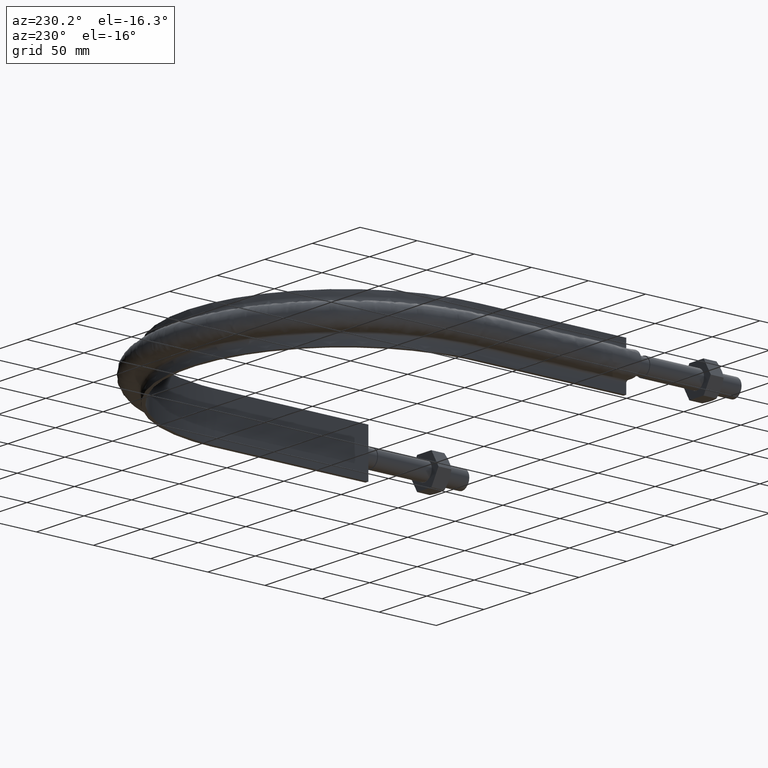
[diagram: clean part render]
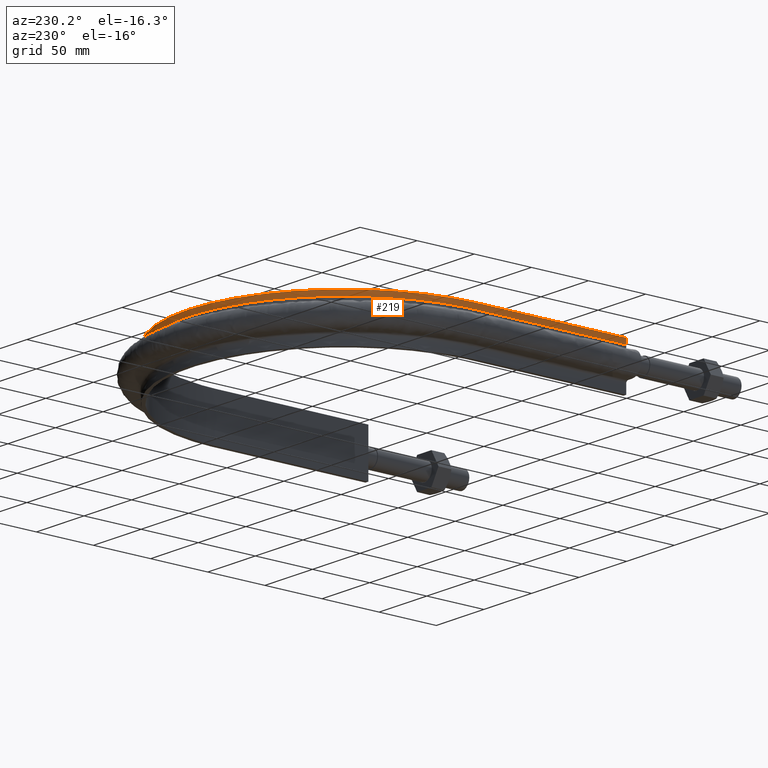
[diagram: same view with one face highlighted and labeled with its STEP entity id]
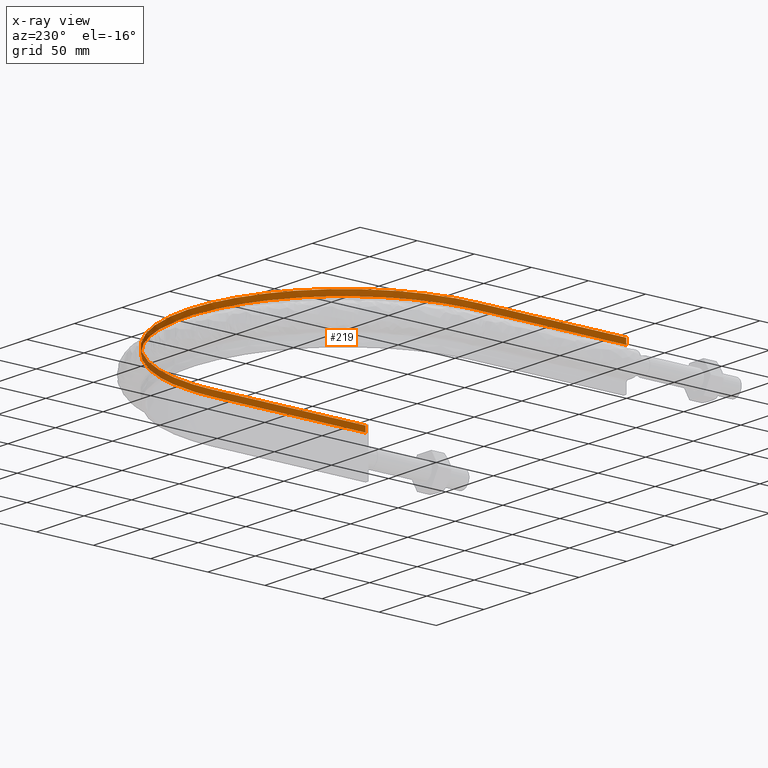
[diagram: x-ray of the same camera — body ghosted, the highlighted face saturated]
A machine part, auxiliary view. The second image highlights one B-rep face of the part: STEP entity #219.
The next image is the same camera in x-ray: the body ghosted, the highlighted face saturated — about 4% of this face is hidden behind the body in this view.
In plain terms, the highlighted face is a SurfaceOfExtrusion surface.
Its self-contained STEP definition (entity closure, byte-faithful):
#219 = ADVANCED_FACE( '', ( #278 ), #279, .F. );
#278 = FACE_OUTER_BOUND( '', #416, .T. );
#279 = SURFACE_OF_LINEAR_EXTRUSION( '', #417, #418 );
#416 = EDGE_LOOP( '', ( #1472, #1473, #1474, #1475 ) );
#417 = B_SPLINE_CURVE_WITH_KNOTS( '', 3, ( #1476, #1477, #1478, #1479, #1480, #1481, #1482, #1483, #1484, #1485, #1486, #1487, #1488, #1489, #1490, #1491, #1492, #1493, #1494, #1495, #1496, #1497, #1498, #1499, #1500, #1501, #1502, #1503, #1504, #1505, #1506, #1507, #1508, #1509, #1510, #1511, #1512, #1513, #1514, #1515, #1516, #1517, #1518, #1519, #1520, #1521, #1522, #1523, #1524, #1525, #1526, #1527, #1528, #1529, #1530, #1531, #1532, #1533, #1534, #1535, #1536, #1537, #1538, #1539, #1540, #1541, #1542, #1543, #1544, #1545, #1546, #1547, #1548, #1549, #1550, #1551, #1552, #1553, #1554, #1555, #1556, #1557, #1558, #1559, #1560, #1561, #1562, #1563, #1564, #1565, #1566, #1567, #1568 ), .UNSPECIFIED., .F., .F., ( 4, 1, 1, 2, 2, 2, 2, 2, 2, 2, 2, 2, 2, 2, 2, 2, 2, 2, 2, 2, 2, 2, 2, 2, 2, 2, 2, 2, 2, 2, 2, 2, 2, 2, 2, 2, 2, 2, 2, 2, 2, 2, 2, 2, 2, 2, 1, 4 ), ( 0.000000000000000, 0.124999999999998, 0.187499999999997, 0.191406249999997, 0.195312499999997, 0.203124999999997, 0.218749999999997, 0.249999999999997, 0.257812499999997, 0.265624999999997, 0.281249999999997, 0.312499999999998, 0.328124999999998, 0.343749999999998, 0.374999999999998, 0.390624999999999, 0.398437499999999, 0.406249999999999, 0.437499999999999, 0.453124999999999, 0.460937499999999, 0.468749999999999, 0.499999999999999, 0.515624999999999, 0.523437499999999, 0.531249999999999, 0.562499999999999, 0.578124999999999, 0.585937499999999, 0.593749999999999, 0.624999999999999, 0.656249999999999, 0.664062499999999, 0.671874999999999, 0.687499999999998, 0.718749999999998, 0.722656249999998, 0.726562499999998, 0.734374999999998, 0.749999999999998, 0.781249999999999, 0.789062499999999, 0.796874999999999, 0.804687499999999, 0.808593749999999, 0.812499999999999, 0.874999999999999, 1.00000000000000 ), .UNSPECIFIED. );
#418 = VECTOR( '', #1569, 1000.00000000000 );
#1472 = ORIENTED_EDGE( '', *, *, #2042, .F. );
#1473 = ORIENTED_EDGE( '', *, *, #2043, .T. );
#1474 = ORIENTED_EDGE( '', *, *, #2044, .T. );
#1475 = ORIENTED_EDGE( '', *, *, #2045, .F. );
#1476 = CARTESIAN_POINT( '', ( -136.950000000000, 89.5000000000001, 15.0000000000000 ) );
#1477 = CARTESIAN_POINT( '', ( -136.950000000000, 118.108351814218, 15.0000000000000 ) );
#1478 = CARTESIAN_POINT( '', ( -136.950000000000, 161.020879535546, 15.0000000000000 ) );
#1479 = CARTESIAN_POINT( '', ( -136.950000000000, 204.827418251068, 15.0000000000000 ) );
#1480 = CARTESIAN_POINT( '', ( -136.950000000000, 220.025605152371, 15.0000000000000 ) );
#1481 = CARTESIAN_POINT( '', ( -136.950000000000, 221.813627140760, 15.0000000000000 ) );
#1482 = CARTESIAN_POINT( '', ( -136.951346114390, 222.707775042566, 15.0000000000000 ) );
#1483 = CARTESIAN_POINT( '', ( -136.920609614582, 225.386681945511, 15.0000000000000 ) );
#1484 = CARTESIAN_POINT( '', ( -136.864816667886, 227.169029468827, 15.0000000000000 ) );
#1485 = CARTESIAN_POINT( '', ( -136.593146380454, 232.505464995943, 15.0000000000000 ) );
#1486 = CARTESIAN_POINT( '', ( -136.273189661635, 236.048967525581, 15.0000000000000 ) );
#1487 = CARTESIAN_POINT( '', ( -134.901802697672, 246.637621477264, 15.0000000000000 ) );
#1488 = CARTESIAN_POINT( '', ( -133.442512350631, 253.641291170171, 15.0000000000000 ) );
#1489 = CARTESIAN_POINT( '', ( -130.901383601595, 262.322953634696, 15.0000000000000 ) );
#1490 = CARTESIAN_POINT( '', ( -130.357015832177, 264.055610275364, 15.0000000000000 ) );
#1491 = CARTESIAN_POINT( '', ( -129.193847954834, 267.513353357774, 15.0000000000000 ) );
#1492 = CARTESIAN_POINT( '', ( -128.573476846171, 269.242131151952, 15.0000000000000 ) );
#1493 = CARTESIAN_POINT( '', ( -126.618174555290, 274.362723165804, 15.0000000000000 ) );
#1494 = CARTESIAN_POINT( '', ( -125.184490197969, 277.702984774706, 15.0000000000000 ) );
#1495 = CARTESIAN_POINT( '', ( -120.505328593638, 287.510336023067, 15.0000000000000 ) );
#1496 = CARTESIAN_POINT( '', ( -116.886061102882, 293.766429658881, 15.0000000000000 ) );
#1497 = CARTESIAN_POINT( '', ( -110.711856714430, 302.729863608687, 15.0000000000000 ) );
#1498 = CARTESIAN_POINT( '', ( -108.528201325971, 305.647880339848, 15.0000000000000 ) );
#1499 = CARTESIAN_POINT( '', ( -103.904407759562, 311.334716161008, 15.0000000000000 ) );
#1500 = CARTESIAN_POINT( '', ( -101.494535344134, 314.066402872891, 15.0000000000000 ) );
#1501 = CARTESIAN_POINT( '', ( -93.9768857717453, 321.932991567949, 15.0000000000000 ) );
#1502 = CARTESIAN_POINT( '', ( -88.5810092968216, 326.739345713163, 15.0000000000000 ) );
#1503 = CARTESIAN_POINT( '', ( -79.9242816112255, 333.306932196036, 15.0000000000000 ) );
#1504 = CARTESIAN_POINT( '', ( -76.9444034133846, 335.388585548724, 15.0000000000000 ) );
#1505 = CARTESIAN_POINT( '', ( -72.3295994596737, 338.345723108324, 15.0000000000000 ) );
#1506 = CARTESIAN_POINT( '', ( -70.7649027135226, 339.304967513352, 15.0000000000000 ) );
#1507 = CARTESIAN_POINT( '', ( -67.6140063459487, 341.151291429897, 15.0000000000000 ) );
#1508 = CARTESIAN_POINT( '', ( -66.0248395654176, 342.040393152112, 15.0000000000000 ) );
#1509 = CARTESIAN_POINT( '', ( -58.0112237793686, 346.317614365293, 15.0000000000000 ) );
#1510 = CARTESIAN_POINT( '', ( -51.3838695117630, 349.201965048637, 15.0000000000000 ) );
#1511 = CARTESIAN_POINT( '', ( -41.1199306990074, 352.726783518545, 15.0000000000000 ) );
#1512 = CARTESIAN_POINT( '', ( -37.6449536795560, 353.768486983704, 15.0000000000000 ) );
#1513 = CARTESIAN_POINT( '', ( -32.3508572250091, 355.128370680882, 15.0000000000000 ) );
#1514 = CARTESIAN_POINT( '', ( -30.5711219683584, 355.548134877370, 15.0000000000000 ) );
#1515 = CARTESIAN_POINT( '', ( -26.9898806015869, 356.317593884025, 15.0000000000000 ) );
#1516 = CARTESIAN_POINT( '', ( -25.1975634552121, 356.665375332185, 15.0000000000000 ) );
#1517 = CARTESIAN_POINT( '', ( -16.2276412077909, 358.222717729931, 15.0000000000000 ) );
#1518 = CARTESIAN_POINT( '', ( -9.02523440856827, 358.892110978601, 15.0000000000000 ) );
#1519 = CARTESIAN_POINT( '', ( 1.81786937464339, 359.036051739121, 15.0000000000000 ) );
#1520 = CARTESIAN_POINT( '', ( 5.43888442946928, 358.939261125259, 15.0000000000000 ) );
#1521 = CARTESIAN_POINT( '', ( 10.8804397715047, 358.575567070277, 15.0000000000000 ) );
#1522 = CARTESIAN_POINT( '', ( 12.6959650568680, 358.417887683017, 15.0000000000000 ) );
#1523 = CARTESIAN_POINT( '', ( 16.3304010621799, 358.028795956680, 15.0000000000000 ) );
#1524 = CARTESIAN_POINT( '', ( 18.1509778757317, 357.796964222104, 15.0000000000000 ) );
#1525 = CARTESIAN_POINT( '', ( 27.1816143256265, 356.463826032725, 15.0000000000000 ) );
#1526 = CARTESIAN_POINT( '', ( 34.2390508622082, 354.839668956545, 15.0000000000000 ) );
#1527 = CARTESIAN_POINT( '', ( 44.5810778790178, 351.588595998648, 15.0000000000000 ) );
#1528 = CARTESIAN_POINT( '', ( 47.9874716560253, 350.368228980460, 15.0000000000000 ) );
#1529 = CARTESIAN_POINT( '', ( 53.0340989443385, 348.327522487613, 15.0000000000000 ) );
#1530 = CARTESIAN_POINT( '', ( 54.7057757971041, 347.612133002601, 15.0000000000000 ) );
#1531 = CARTESIAN_POINT( '', ( 58.0278931759396, 346.110472498892, 15.0000000000000 ) );
#1532 = CARTESIAN_POINT( '', ( 59.6804492387638, 345.323156348271, 15.0000000000000 ) );
#1533 = CARTESIAN_POINT( '', ( 67.8662269615203, 341.218943105620, 15.0000000000000 ) );
#1534 = CARTESIAN_POINT( '', ( 74.0672509269292, 337.457093171530, 15.0000000000000 ) );
#1535 = CARTESIAN_POINT( '', ( 85.8066697855649, 329.021264559786, 15.0000000000000 ) );
#1536 = CARTESIAN_POINT( '', ( 91.3450708111372, 324.347294323490, 15.0000000000000 ) );
#1537 = CARTESIAN_POINT( '', ( 97.8308624293468, 317.902999344752, 15.0000000000000 ) );
#1538 = CARTESIAN_POINT( '', ( 99.1063522438755, 316.583042958306, 15.0000000000000 ) );
#1539 = CARTESIAN_POINT( '', ( 101.590244963731, 313.906741637720, 15.0000000000000 ) );
#1540 = CARTESIAN_POINT( '', ( 102.801672903783, 312.547491271699, 15.0000000000000 ) );
#1541 = CARTESIAN_POINT( '', ( 106.346254323219, 308.407722078791, 15.0000000000000 ) );
#1542 = CARTESIAN_POINT( '', ( 108.589893323642, 305.565315081671, 15.0000000000000 ) );
#1543 = CARTESIAN_POINT( '', ( 114.970214089517, 296.795700236810, 15.0000000000000 ) );
#1544 = CARTESIAN_POINT( '', ( 118.759288976830, 290.628165305694, 15.0000000000000 ) );
#1545 = CARTESIAN_POINT( '', ( 122.482049801510, 283.316381079696, 15.0000000000000 ) );
#1546 = CARTESIAN_POINT( '', ( 122.888127373352, 282.498732064797, 15.0000000000000 ) );
#1547 = CARTESIAN_POINT( '', ( 123.684984798983, 280.852857558546, 15.0000000000000 ) );
#1548 = CARTESIAN_POINT( '', ( 124.076188679038, 280.023697389436, 15.0000000000000 ) );
#1549 = CARTESIAN_POINT( '', ( 125.223076035006, 277.527782870250, 15.0000000000000 ) );
#1550 = CARTESIAN_POINT( '', ( 125.951536386374, 275.853956327218, 15.0000000000000 ) );
#1551 = CARTESIAN_POINT( '', ( 128.029666807743, 270.803138776700, 15.0000000000000 ) );
#1552 = CARTESIAN_POINT( '', ( 129.272445179675, 267.396908032733, 15.0000000000000 ) );
#1553 = CARTESIAN_POINT( '', ( 132.586786070951, 257.064969568914, 15.0000000000000 ) );
#1554 = CARTESIAN_POINT( '', ( 134.247821790206, 250.026964115282, 15.0000000000000 ) );
#1555 = CARTESIAN_POINT( '', ( 135.630952375180, 241.039845429983, 15.0000000000000 ) );
#1556 = CARTESIAN_POINT( '', ( 135.872641992840, 239.232864972873, 15.0000000000000 ) );
#1557 = CARTESIAN_POINT( '', ( 136.284803757172, 235.599422844283, 15.0000000000000 ) );
#1558 = CARTESIAN_POINT( '', ( 136.455153129533, 233.772516640444, 15.0000000000000 ) );
#1559 = CARTESIAN_POINT( '', ( 136.721567786733, 230.123756924612, 15.0000000000000 ) );
#1560 = CARTESIAN_POINT( '', ( 136.818027802696, 228.298840221395, 15.0000000000000 ) );
#1561 = CARTESIAN_POINT( '', ( 136.907499245267, 225.560658472590, 15.0000000000000 ) );
#1562 = CARTESIAN_POINT( '', ( 136.928116262671, 224.647796719940, 15.0000000000000 ) );
#1563 = CARTESIAN_POINT( '', ( 136.950875956315, 222.821803321073, 15.0000000000000 ) );
#1564 = CARTESIAN_POINT( '', ( 136.950000000000, 221.908627575341, 15.0000000000000 ) );
#1565 = CARTESIAN_POINT( '', ( 136.950000000000, 206.384857445818, 15.0000000000000 ) );
#1566 = CARTESIAN_POINT( '', ( 136.950000000000, 162.553035903637, 15.0000000000000 ) );
#1567 = CARTESIAN_POINT( '', ( 136.950000000000, 118.721214361455, 15.0000000000000 ) );
#1568 = CARTESIAN_POINT( '', ( 136.950000000000, 89.5000000000000, 15.0000000000000 ) );
#1569 = DIRECTION( '', ( 7.49830360911069E-032, 3.06151588455594E-016, 1.00000000000000 ) );
#2042 = EDGE_CURVE( '', #2146, #2147, #2148, .T. );
#2043 = EDGE_CURVE( '', #2146, #2149, #2150, .T. );
#2044 = EDGE_CURVE( '', #2149, #2151, #2152, .T. );
#2045 = EDGE_CURVE( '', #2147, #2151, #2153, .T. );
#2146 = VERTEX_POINT( '', #2320 );
#2147 = VERTEX_POINT( '', #2321 );
#2148 = B_SPLINE_CURVE_WITH_KNOTS( '', 3, ( #2322, #2323, #2324, #2325, #2326, #2327, #2328, #2329, #2330, #2331, #2332, #2333, #2334, #2335, #2336, #2337, #2338 ), .UNSPECIFIED., .F., .F., ( 4, 3, 1, 1, 1, 1, 1, 1, 1, 3, 4 ), ( 0.000000000000000, 0.100000000000000, 0.200000000000000, 0.300000000000000, 0.400000000000000, 0.500000000000000, 0.600000000000000, 0.700000000000000, 0.800000000000000, 0.900000000000000, 1.00000000000000 ), .UNSPECIFIED. );
#2149 = VERTEX_POINT( '', #2339 );
#2150 = LINE( '', #2340, #2341 );
#2151 = VERTEX_POINT( '', #2342 );
#2152 = B_SPLINE_CURVE_WITH_KNOTS( '', 3, ( #2343, #2344, #2345, #2346, #2347, #2348, #2349, #2350, #2351, #2352, #2353, #2354, #2355, #2356, #2357, #2358, #2359, #2360, #2361, #2362, #2363, #2364, #2365, #2366, #2367, #2368, #2369, #2370, #2371, #2372, #2373, #2374, #2375, #2376, #2377, #2378, #2379, #2380, #2381, #2382, #2383, #2384, #2385, #2386, #2387, #2388, #2389, #2390, #2391, #2392, #2393, #2394, #2395, #2396, #2397, #2398, #2399, #2400, #2401, #2402, #2403, #2404, #2405, #2406, #2407, #2408, #2409, #2410, #2411, #2412, #2413, #2414, #2415, #2416, #2417, #2418, #2419, #2420, #2421, #2422, #2423, #2424, #2425, #2426, #2427, #2428, #2429, #2430, #2431, #2432, #2433, #2434, #2435, #2436, #2437, #2438, #2439, #2440, #2441, #2442, #2443, #2444, #2445, #2446, #2447, #2448, #2449 ), .UNSPECIFIED., .F., .F., ( 4, 1, 2, 2, 2, 2, 2, 2, 2, 2, 2, 2, 2, 2, 2, 2, 2, 2, 2, 2, 2, 2, 2, 2, 2, 2, 2, 2, 2, 2, 2, 2, 2, 2, 2, 1, 2, 2, 2, 2, 2, 2, 2, 2, 2, 2, 2, 2, 2, 2, 2, 2, 2, 1, 4 ), ( 0.000000000000000, 0.0874256844655815, 0.131138526698372, 0.133870579337922, 0.136602631977471, 0.142066737256570, 0.152994947814768, 0.174851368931163, 0.180315474210262, 0.183047526849812, 0.185779579489361, 0.196707790047559, 0.218564211163955, 0.229492421722153, 0.232224474361703, 0.234956527001252, 0.240420632280351, 0.262277053396747, 0.273205263954945, 0.275937316594494, 0.278669369234044, 0.284133474513143, 0.305989895629539, 0.316918106187736, 0.322382211466835, 0.325114264106385, 0.327846316745934, 0.349702737862330, 0.360630948420528, 0.366095053699627, 0.368827106339176, 0.371559158978726, 0.393415580095122, 0.415272001211517, 0.418004053851067, 0.420736106490616, 0.426200211769715, 0.437128422327914, 0.458984843444310, 0.461716896083859, 0.464448948723409, 0.469913054002508, 0.480841264560705, 0.502697685677100, 0.508161790956199, 0.513625896235298, 0.524554106793496, 0.546410527909891, 0.551874633188990, 0.557338738468089, 0.562802843747188, 0.565534896386737, 0.568266949026287, 0.611979791259078, 0.699405475724661 ), .UNSPECIFIED. );
#2153 = LINE( '', #2450, #2451 );
#2320 = CARTESIAN_POINT( '', ( -136.950000000000, 89.5000000000001, 15.0000000000000 ) );
#2321 = CARTESIAN_POINT( '', ( 136.950000000000, 89.5000000000001, 15.0000000000000 ) );
#2322 = CARTESIAN_POINT( '', ( -136.950000000000, 89.5000000000001, 15.0000000000000 ) );
#2323 = CARTESIAN_POINT( '', ( -136.950000000000, 133.683333333333, 15.0000000000000 ) );
#2324 = CARTESIAN_POINT( '', ( -136.950000000000, 177.866666666667, 15.0000000000000 ) );
#2325 = CARTESIAN_POINT( '', ( -136.950000000000, 222.050000000000, 15.0000000000000 ) );
#2326 = CARTESIAN_POINT( '', ( -136.950000000000, 239.963857435017, 15.0000000000000 ) );
#2327 = CARTESIAN_POINT( '', ( -129.819269813161, 275.827750890366, 15.0000000000000 ) );
#2328 = CARTESIAN_POINT( '', ( -99.3593675184604, 321.408062105588, 15.0000000000000 ) );
#2329 = CARTESIAN_POINT( '', ( -53.7729022139835, 351.869642788267, 15.0000000000000 ) );
#2330 = CARTESIAN_POINT( '', ( 8.75569432064516E-014, 362.565178605866, 15.0000000000000 ) );
#2331 = CARTESIAN_POINT( '', ( 53.7729022139835, 351.869642788268, 15.0000000000000 ) );
#2332 = CARTESIAN_POINT( '', ( 99.3593675184605, 321.408062105588, 15.0000000000000 ) );
#2333 = CARTESIAN_POINT( '', ( 129.819269813161, 275.827750890366, 15.0000000000000 ) );
#2334 = CARTESIAN_POINT( '', ( 136.950000000000, 239.963857435017, 15.0000000000000 ) );
#2335 = CARTESIAN_POINT( '', ( 136.950000000000, 222.050000000000, 15.0000000000000 ) );
#2336 = CARTESIAN_POINT( '', ( 136.950000000000, 177.866666666667, 15.0000000000000 ) );
#2337 = CARTESIAN_POINT( '', ( 136.950000000000, 133.683333333333, 15.0000000000000 ) );
#2338 = CARTESIAN_POINT( '', ( 136.950000000000, 89.5000000000000, 15.0000000000000 ) );
#2339 = CARTESIAN_POINT( '', ( -136.950000000000, 89.5000000000001, 20.0000000000000 ) );
#2340 = CARTESIAN_POINT( '', ( -136.950000000000, 89.5000000000001, 15.0000000000000 ) );
#2341 = VECTOR( '', #3142, 1000.00000000000 );
#2342 = CARTESIAN_POINT( '', ( 136.950000000000, 89.5000000000000, 20.0000000000000 ) );
#2343 = CARTESIAN_POINT( '', ( -136.950000000000, 89.5000000000001, 20.0000000000000 ) );
#2344 = CARTESIAN_POINT( '', ( -136.950000000000, 118.641900248097, 20.0000000000000 ) );
#2345 = CARTESIAN_POINT( '', ( -136.950000000000, 162.354750620242, 20.0000000000000 ) );
#2346 = CARTESIAN_POINT( '', ( -136.950000000000, 206.067600992388, 20.0000000000000 ) );
#2347 = CARTESIAN_POINT( '', ( -136.950000000000, 221.549235499189, 20.0000000000000 ) );
#2348 = CARTESIAN_POINT( '', ( -136.952005766823, 222.459921105955, 20.0000000000000 ) );
#2349 = CARTESIAN_POINT( '', ( -136.934979206279, 224.281279481058, 20.0000000000000 ) );
#2350 = CARTESIAN_POINT( '', ( -136.916553871832, 225.191952619811, 20.0000000000000 ) );
#2351 = CARTESIAN_POINT( '', ( -136.834753701177, 227.923955849783, 20.0000000000000 ) );
#2352 = CARTESIAN_POINT( '', ( -136.743599783762, 229.741272047870, 20.0000000000000 ) );
#2353 = CARTESIAN_POINT( '', ( -136.363495553162, 235.166484778742, 20.0000000000000 ) );
#2354 = CARTESIAN_POINT( '', ( -135.967488703048, 238.753870458483, 20.0000000000000 ) );
#2355 = CARTESIAN_POINT( '', ( -134.367551969832, 249.431038801508, 20.0000000000000 ) );
#2356 = CARTESIAN_POINT( '', ( -132.750553866295, 256.435595074194, 20.0000000000000 ) );
#2357 = CARTESIAN_POINT( '', ( -130.033489035348, 265.047725779313, 20.0000000000000 ) );
#2358 = CARTESIAN_POINT( '', ( -129.454886141077, 266.762891350757, 20.0000000000000 ) );
#2359 = CARTESIAN_POINT( '', ( -128.533317502652, 269.324567410145, 20.0000000000000 ) );
#2360 = CARTESIAN_POINT( '', ( -128.217212893149, 270.176620027551, 20.0000000000000 ) );
#2361 = CARTESIAN_POINT( '', ( -127.566740219219, 271.876957051044, 20.0000000000000 ) );
#2362 = CARTESIAN_POINT( '', ( -127.232398800356, 272.725180838081, 20.0000000000000 ) );
#2363 = CARTESIAN_POINT( '', ( -125.522807242117, 276.937555990540, 20.0000000000000 ) );
#2364 = CARTESIAN_POINT( '', ( -124.027890382201, 280.231015655089, 20.0000000000000 ) );
#2365 = CARTESIAN_POINT( '', ( -119.177772488664, 289.891903517811, 20.0000000000000 ) );
#2366 = CARTESIAN_POINT( '', ( -115.456951462216, 296.039688790399, 20.0000000000000 ) );
#2367 = CARTESIAN_POINT( '', ( -109.152951019672, 304.827169774975, 20.0000000000000 ) );
#2368 = CARTESIAN_POINT( '', ( -106.930050833054, 307.683299996956, 20.0000000000000 ) );
#2369 = CARTESIAN_POINT( '', ( -103.994442146736, 311.159156375516, 20.0000000000000 ) );
#2370 = CARTESIAN_POINT( '', ( -103.399206220783, 311.849830869774, 20.0000000000000 ) );
#2371 = CARTESIAN_POINT( '', ( -102.198265091278, 313.215468669274, 20.0000000000000 ) );
#2372 = CARTESIAN_POINT( '', ( -101.591920700932, 313.891203542517, 20.0000000000000 ) );
#2373 = CARTESIAN_POINT( '', ( -99.7553846231912, 315.897299082128, 20.0000000000000 ) );
#2374 = CARTESIAN_POINT( '', ( -98.5077032633142, 317.206566629285, 20.0000000000000 ) );
#2375 = CARTESIAN_POINT( '', ( -92.1539858603006, 323.613835991367, 20.0000000000000 ) );
#2376 = CARTESIAN_POINT( '', ( -86.7024715106617, 328.295179626358, 20.0000000000000 ) );
#2377 = CARTESIAN_POINT( '', ( -77.9891669345071, 334.670721620162, 20.0000000000000 ) );
#2378 = CARTESIAN_POINT( '', ( -74.9946413234067, 336.687249879648, 20.0000000000000 ) );
#2379 = CARTESIAN_POINT( '', ( -71.1363767592713, 339.069086719332, 20.0000000000000 ) );
#2380 = CARTESIAN_POINT( '', ( -70.3589796436354, 339.538526390095, 20.0000000000000 ) );
#2381 = CARTESIAN_POINT( '', ( -68.7925101038829, 340.463324926285, 20.0000000000000 ) );
#2382 = CARTESIAN_POINT( '', ( -68.0028416365670, 340.918994503189, 20.0000000000000 ) );
#2383 = CARTESIAN_POINT( '', ( -65.6265150792908, 342.258978990773, 20.0000000000000 ) );
#2384 = CARTESIAN_POINT( '', ( -64.0295971988746, 343.118030590869, 20.0000000000000 ) );
#2385 = CARTESIAN_POINT( '', ( -55.9824089667685, 347.244365806939, 20.0000000000000 ) );
#2386 = CARTESIAN_POINT( '', ( -49.3439512001538, 350.003826159947, 20.0000000000000 ) );
#2387 = CARTESIAN_POINT( '', ( -39.0910082444983, 353.346268295589, 20.0000000000000 ) );
#2388 = CARTESIAN_POINT( '', ( -35.6241551653292, 354.327634953126, 20.0000000000000 ) );
#2389 = CARTESIAN_POINT( '', ( -30.3492784457228, 355.598384851549, 20.0000000000000 ) );
#2390 = CARTESIAN_POINT( '', ( -28.5785337099375, 355.988365122304, 20.0000000000000 ) );
#2391 = CARTESIAN_POINT( '', ( -25.9034309357601, 356.522102744637, 20.0000000000000 ) );
#2392 = CARTESIAN_POINT( '', ( -25.0077107436048, 356.691611247168, 20.0000000000000 ) );
#2393 = CARTESIAN_POINT( '', ( -23.2172138820089, 357.012112274077, 20.0000000000000 ) );
#2394 = CARTESIAN_POINT( '', ( -22.3218036874213, 357.163270419115, 20.0000000000000 ) );
#2395 = CARTESIAN_POINT( '', ( -14.2616746941675, 358.442909678168, 20.0000000000000 ) );
#2396 = CARTESIAN_POINT( '', ( -7.08688203431486, 359.005162357812, 20.0000000000000 ) );
#2397 = CARTESIAN_POINT( '', ( 3.69045053044917, 358.997356057590, 20.0000000000000 ) );
#2398 = CARTESIAN_POINT( '', ( 7.28543714269022, 358.851850186394, 20.0000000000000 ) );
#2399 = CARTESIAN_POINT( '', ( 12.6817359396744, 358.418941046075, 20.0000000000000 ) );
#2400 = CARTESIAN_POINT( '', ( 14.4811397915358, 358.238800753868, 20.0000000000000 ) );
#2401 = CARTESIAN_POINT( '', ( 17.1812121944219, 357.914258555030, 20.0000000000000 ) );
#2402 = CARTESIAN_POINT( '', ( 18.0813968219195, 357.797056870437, 20.0000000000000 ) );
#2403 = CARTESIAN_POINT( '', ( 19.8820902819459, 357.544430686409, 20.0000000000000 ) );
#2404 = CARTESIAN_POINT( '', ( 20.7835449490407, 357.408813108141, 20.0000000000000 ) );
#2405 = CARTESIAN_POINT( '', ( 28.8670965883820, 356.111328549364, 20.0000000000000 ) );
#2406 = CARTESIAN_POINT( '', ( 35.8703135520984, 354.406800400232, 20.0000000000000 ) );
#2407 = CARTESIAN_POINT( '', ( 49.5251538415553, 349.933849723643, 20.0000000000000 ) );
#2408 = CARTESIAN_POINT( '', ( 56.1748232267847, 347.159514727641, 20.0000000000000 ) );
#2409 = CARTESIAN_POINT( '', ( 63.4492399728097, 343.413652350479, 20.0000000000000 ) );
#2410 = CARTESIAN_POINT( '', ( 64.2555412528519, 342.988297906811, 20.0000000000000 ) );
#2411 = CARTESIAN_POINT( '', ( 65.8566175141648, 342.123190874316, 20.0000000000000 ) );
#2412 = CARTESIAN_POINT( '', ( 68.2414579243010, 340.803750954360, 20.0000000000000 ) );
#2413 = CARTESIAN_POINT( '', ( 70.5763589403766, 339.419469626309, 20.0000000000000 ) );
#2414 = CARTESIAN_POINT( '', ( 75.1805857318945, 336.565763947976, 20.0000000000000 ) );
#2415 = CARTESIAN_POINT( '', ( 78.1627035340827, 334.549856366450, 20.0000000000000 ) );
#2416 = CARTESIAN_POINT( '', ( 86.8543207620411, 328.171383663366, 20.0000000000000 ) );
#2417 = CARTESIAN_POINT( '', ( 92.3077229888397, 323.476301431764, 20.0000000000000 ) );
#2418 = CARTESIAN_POINT( '', ( 98.0418417248418, 317.673728261725, 20.0000000000000 ) );
#2419 = CARTESIAN_POINT( '', ( 98.6733697505300, 317.021731690662, 20.0000000000000 ) );
#2420 = CARTESIAN_POINT( '', ( 99.9251833237768, 315.703141292678, 20.0000000000000 ) );
#2421 = CARTESIAN_POINT( '', ( 100.546136743137, 315.035752086236, 20.0000000000000 ) );
#2422 = CARTESIAN_POINT( '', ( 102.386046552858, 313.018007311467, 20.0000000000000 ) );
#2423 = CARTESIAN_POINT( '', ( 103.581668710416, 311.652670943037, 20.0000000000000 ) );
#2424 = CARTESIAN_POINT( '', ( 107.077810366196, 307.497593093917, 20.0000000000000 ) );
#2425 = CARTESIAN_POINT( '', ( 109.287409665405, 304.648655660808, 20.0000000000000 ) );
#2426 = CARTESIAN_POINT( '', ( 115.563663674953, 295.872310524427, 20.0000000000000 ) );
#2427 = CARTESIAN_POINT( '', ( 119.278439319531, 289.715802833905, 20.0000000000000 ) );
#2428 = CARTESIAN_POINT( '', ( 123.322162063998, 281.629687512518, 20.0000000000000 ) );
#2429 = CARTESIAN_POINT( '', ( 124.100657851930, 279.992770208301, 20.0000000000000 ) );
#2430 = CARTESIAN_POINT( '', ( 125.595826737251, 276.678684334610, 20.0000000000000 ) );
#2431 = CARTESIAN_POINT( '', ( 126.312684101756, 275.000403133012, 20.0000000000000 ) );
#2432 = CARTESIAN_POINT( '', ( 128.350441665647, 269.950404789003, 20.0000000000000 ) );
#2433 = CARTESIAN_POINT( '', ( 129.565681668817, 266.548771227834, 20.0000000000000 ) );
#2434 = CARTESIAN_POINT( '', ( 132.799201309553, 256.243261059045, 20.0000000000000 ) );
#2435 = CARTESIAN_POINT( '', ( 134.406489655848, 249.239070076662, 20.0000000000000 ) );
#2436 = CARTESIAN_POINT( '', ( 135.730368078418, 240.316580552520, 20.0000000000000 ) );
#2437 = CARTESIAN_POINT( '', ( 135.960596827439, 238.523650463586, 20.0000000000000 ) );
#2438 = CARTESIAN_POINT( '', ( 136.350715609651, 234.920622076926, 20.0000000000000 ) );
#2439 = CARTESIAN_POINT( '', ( 136.510773884774, 233.109390090216, 20.0000000000000 ) );
#2440 = CARTESIAN_POINT( '', ( 136.758613068843, 229.474281669831, 20.0000000000000 ) );
#2441 = CARTESIAN_POINT( '', ( 136.846031799769, 227.656639207718, 20.0000000000000 ) );
#2442 = CARTESIAN_POINT( '', ( 136.922369077726, 224.930043041099, 20.0000000000000 ) );
#2443 = CARTESIAN_POINT( '', ( 136.939052762000, 224.021156467248, 20.0000000000000 ) );
#2444 = CARTESIAN_POINT( '', ( 136.951967908155, 222.203333870084, 20.0000000000000 ) );
#2445 = CARTESIAN_POINT( '', ( 136.950000000000, 221.294402200342, 20.0000000000000 ) );
#2446 = CARTESIAN_POINT( '', ( 136.950000000000, 205.842644700991, 20.0000000000000 ) );
#2447 = CARTESIAN_POINT( '', ( 136.950000000000, 162.214152938120, 20.0000000000000 ) );
#2448 = CARTESIAN_POINT( '', ( 136.950000000000, 118.585661175248, 20.0000000000000 ) );
#2449 = CARTESIAN_POINT( '', ( 136.950000000000, 89.4999999999999, 20.0000000000000 ) );
#2450 = CARTESIAN_POINT( '', ( 136.950000000000, 89.5000000000000, 15.0000000000000 ) );
#2451 = VECTOR( '', #3143, 1000.00000000000 );
#3142 = DIRECTION( '', ( 7.49830360911069E-032, 3.06151588455594E-016, 1.00000000000000 ) );
#3143 = DIRECTION( '', ( 7.49830360911069E-032, 3.06151588455594E-016, 1.00000000000000 ) );